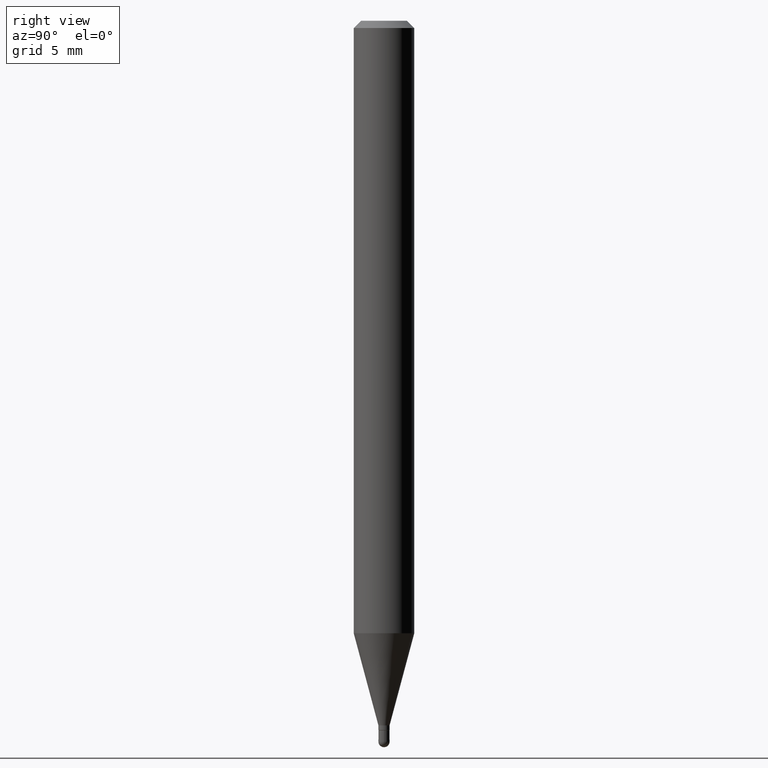
[diagram: clean part render]
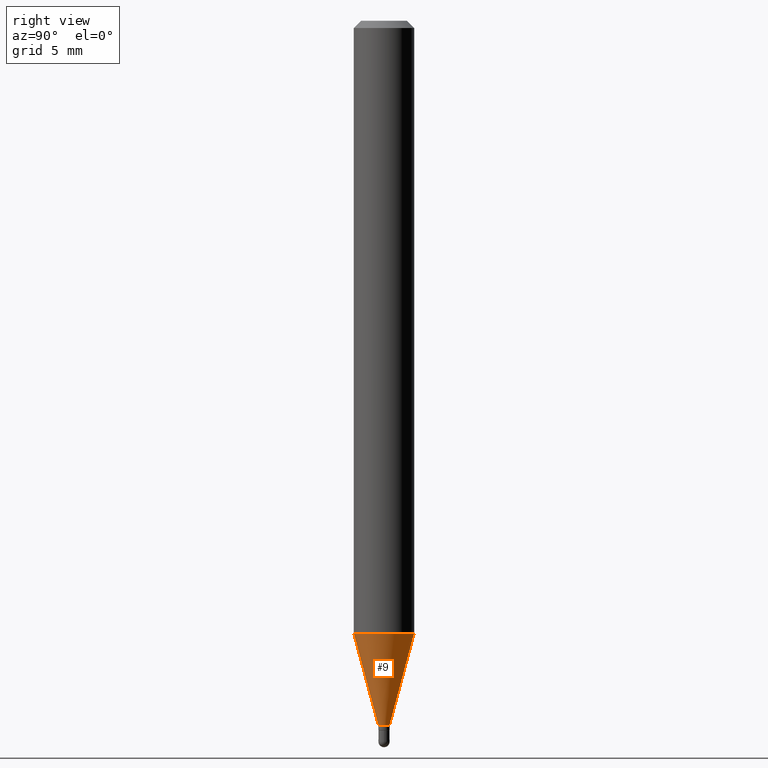
[diagram: same view with one face highlighted and labeled with its STEP entity id]
A machine part, right view. The second image highlights one B-rep face of the part: STEP entity #9.
In plain terms, the highlighted conical surface has half-angle 15 deg.
Its self-contained STEP definition (entity closure, byte-faithful):
#5 = DIRECTION ( 'NONE',  ( 1.839019923739600710E-15, 0.2588190451025250138, 0.9659258262890670910 ) ) ;
#7 = CIRCLE ( 'NONE', #511, 0.01149999999999992348 ) ;
#9 = ADVANCED_FACE ( 'NONE', ( #431 ), #44, .T. ) ;
#11 = VERTEX_POINT ( 'NONE', #237 ) ;
#15 = EDGE_CURVE ( 'NONE', #11, #404, #307, .T. ) ;
#40 = CARTESIAN_POINT ( 'NONE',  ( 3.558147902781818147E-29, -5.080118537572531884E-15, -1.455000000000000293 ) ) ;
#44 = CONICAL_SURFACE ( 'NONE', #229, 0.01149999999999992348, 0.2617993877991502960 ) ;
#78 = EDGE_LOOP ( 'NONE', ( #293, #419, #273, #339 ) ) ;
#83 = EDGE_CURVE ( 'NONE', #494, #336, #232, .T. ) ;
#84 = DIRECTION ( 'NONE',  ( -6.982962677686265133E-15, -1.000000000000000000, 0.000000000000000000 ) ) ;
#114 = CARTESIAN_POINT ( 'NONE',  ( -8.030407079335594572E-17, -0.01150000000000500275, -1.455000000000000293 ) ) ;
#123 = CARTESIAN_POINT ( 'NONE',  ( 8.171241461244653802E-17, 0.01149999999999484421, -1.455000000000000293 ) ) ;
#129 = CARTESIAN_POINT ( 'NONE',  ( 4.440892098500932831E-16, 0.06249999999999557992, -1.264665408813988146 ) ) ;
#165 = DIRECTION ( 'NONE',  ( -2.445462476138705994E-29, 3.491490403829918303E-15, 1.000000000000000000 ) ) ;
#185 = CIRCLE ( 'NONE', #196, 0.06250000000000000000 ) ;
#196 = AXIS2_PLACEMENT_3D ( 'NONE', #203, #165, #316 ) ;
#203 = CARTESIAN_POINT ( 'NONE',  ( 3.092691802125223590E-29, -4.415567138929678852E-15, -1.264665408813987924 ) ) ;
#229 = AXIS2_PLACEMENT_3D ( 'NONE', #40, #388, #84 ) ;
#232 = LINE ( 'NONE', #114, #353 ) ;
#237 = CARTESIAN_POINT ( 'NONE',  ( 2.629008122312701386E-16, 0.01149999999999484421, -1.455000000000000293 ) ) ;
#248 = CARTESIAN_POINT ( 'NONE',  ( -4.364351673553607559E-16, -0.06250000000000441314, -1.264665408813987479 ) ) ;
#251 = CARTESIAN_POINT ( 'NONE',  ( 3.558147902781818147E-29, -5.080118537572531884E-15, -1.455000000000000293 ) ) ;
#272 = DIRECTION ( 'NONE',  ( -1.807323732225330534E-15, -0.2588190451025182415, 0.9659258262890689783 ) ) ;
#273 = ORIENTED_EDGE ( 'NONE', *, *, #345, .F. ) ;
#293 = ORIENTED_EDGE ( 'NONE', *, *, #381, .T. ) ;
#307 = LINE ( 'NONE', #123, #442 ) ;
#316 = DIRECTION ( 'NONE',  ( -6.982962677686265922E-15, -1.000000000000000000, 4.370956789862821150E-15 ) ) ;
#336 = VERTEX_POINT ( 'NONE', #248 ) ;
#339 = ORIENTED_EDGE ( 'NONE', *, *, #83, .F. ) ;
#345 = EDGE_CURVE ( 'NONE', #336, #404, #185, .T. ) ;
#353 = VECTOR ( 'NONE', #272, 39.37007874015748143 ) ;
#381 = EDGE_CURVE ( 'NONE', #494, #11, #7, .T. ) ;
#388 = DIRECTION ( 'NONE',  ( -2.445462476138705994E-29, 3.491490403829918303E-15, 1.000000000000000000 ) ) ;
#396 = CARTESIAN_POINT ( 'NONE',  ( -8.030407079335594572E-17, -0.01150000000000500275, -1.455000000000000293 ) ) ;
#404 = VERTEX_POINT ( 'NONE', #129 ) ;
#419 = ORIENTED_EDGE ( 'NONE', *, *, #15, .T. ) ;
#431 = FACE_OUTER_BOUND ( 'NONE', #78, .T. ) ;
#434 = DIRECTION ( 'NONE',  ( -6.982962677686265133E-15, -1.000000000000000000, 0.000000000000000000 ) ) ;
#442 = VECTOR ( 'NONE', #5, 39.37007874015748143 ) ;
#474 = DIRECTION ( 'NONE',  ( -2.445462476138705994E-29, 3.491490403829918303E-15, 1.000000000000000000 ) ) ;
#494 = VERTEX_POINT ( 'NONE', #396 ) ;
#511 = AXIS2_PLACEMENT_3D ( 'NONE', #251, #474, #434 ) ;